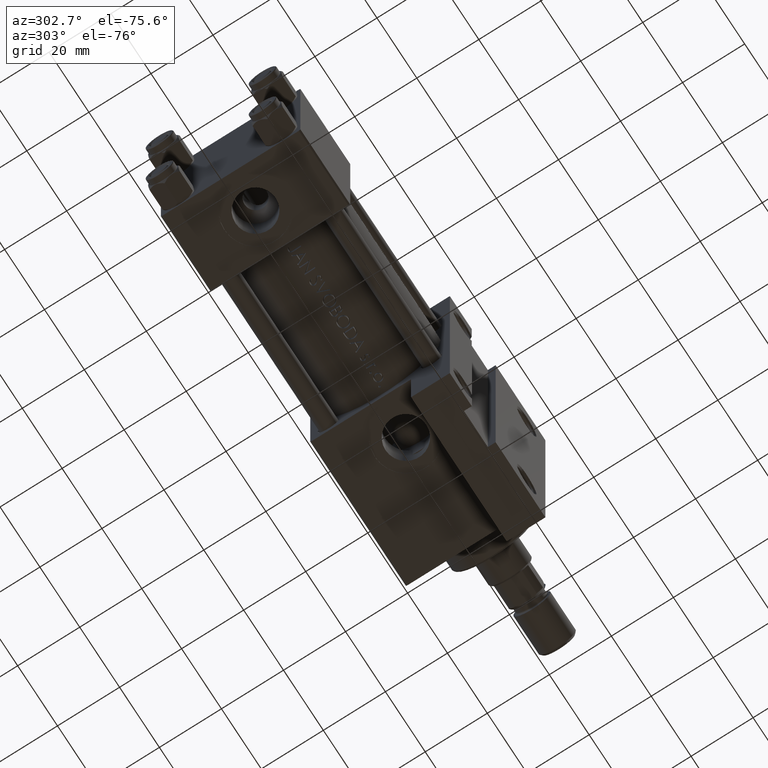
[diagram: clean part render]
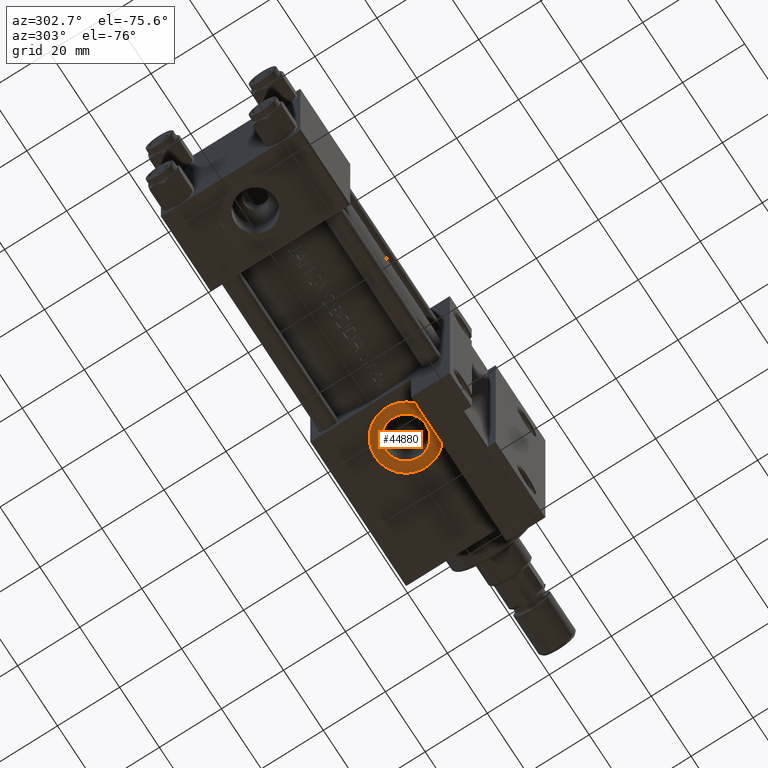
[diagram: same view with one face highlighted and labeled with its STEP entity id]
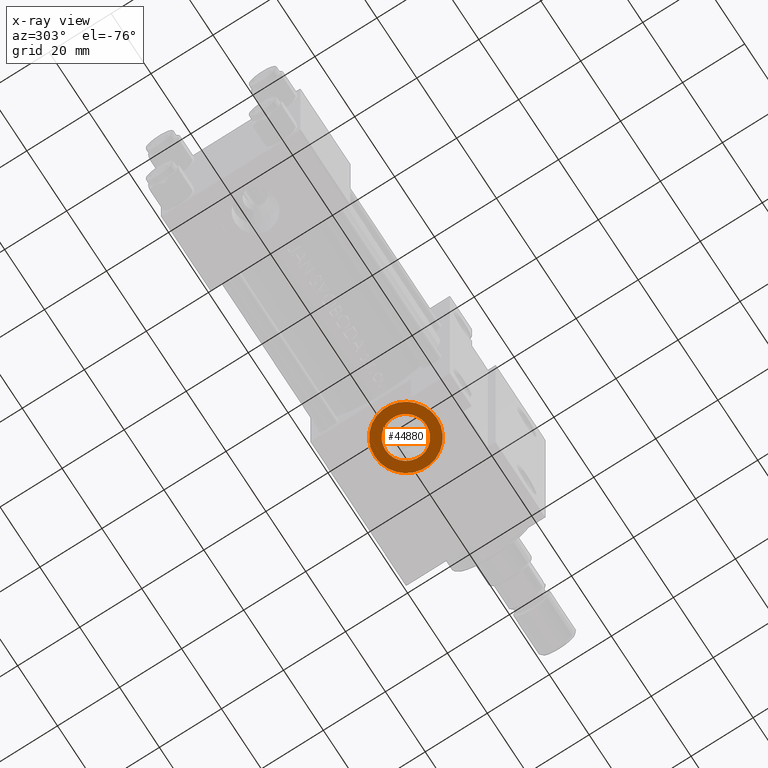
[diagram: x-ray of the same camera — body ghosted, the highlighted face saturated]
A machine part, auxiliary view. The second image highlights one B-rep face of the part: STEP entity #44880.
The next image is the same camera in x-ray: the body ghosted, the highlighted face saturated — about 0% of this face is hidden behind the body in this view.
In plain terms, the highlighted planar face has unit normal (0, 0, -1).
Its self-contained STEP definition (entity closure, byte-faithful):
#77 = CIRCLE ( 'NONE', #36653, 9.999999999999994671 ) ;
#1368 = CARTESIAN_POINT ( 'NONE',  ( 88.00000000000001421, 22.30000000000000426, 0.000000000000000000 ) ) ;
#1421 = CARTESIAN_POINT ( 'NONE',  ( 88.00000000000001421, 22.30000000000000426, 6.580000000000002736 ) ) ;
#2317 = AXIS2_PLACEMENT_3D ( 'NONE', #29065, #40512, #32976 ) ;
#3944 = DIRECTION ( 'NONE',  ( 0.000000000000000000, 1.000000000000000000, 0.000000000000000000 ) ) ;
#5263 = VERTEX_POINT ( 'NONE', #1421 ) ;
#6853 = VERTEX_POINT ( 'NONE', #30753 ) ;
#7471 = ORIENTED_EDGE ( 'NONE', *, *, #39522, .T. ) ;
#7475 = DIRECTION ( 'NONE',  ( 0.000000000000000000, 1.000000000000000000, 0.000000000000000000 ) ) ;
#10198 = AXIS2_PLACEMENT_3D ( 'NONE', #1368, #31816, #35469 ) ;
#11007 = DIRECTION ( 'NONE',  ( 0.000000000000000000, -0.000000000000000000, 1.000000000000000000 ) ) ;
#11502 = FACE_BOUND ( 'NONE', #18944, .T. ) ;
#11633 = EDGE_CURVE ( 'NONE', #31783, #6853, #33551, .T. ) ;
#12791 = EDGE_CURVE ( 'NONE', #5263, #27099, #30375, .T. ) ;
#13099 = CARTESIAN_POINT ( 'NONE',  ( 88.00000000000001421, 22.30000000000000426, 0.000000000000000000 ) ) ;
#13370 = AXIS2_PLACEMENT_3D ( 'NONE', #21727, #3944, #11007 ) ;
#16524 = DIRECTION ( 'NONE',  ( 0.000000000000000000, 1.000000000000000000, 0.000000000000000000 ) ) ;
#18337 = PLANE ( 'NONE',  #13370 ) ;
#18350 = ORIENTED_EDGE ( 'NONE', *, *, #12791, .F. ) ;
#18944 = EDGE_LOOP ( 'NONE', ( #18350, #31533 ) ) ;
#20509 = CARTESIAN_POINT ( 'NONE',  ( 88.00000000000001421, 22.30000000000000426, -6.580000000000002736 ) ) ;
#21727 = CARTESIAN_POINT ( 'NONE',  ( 88.00000000000001421, 22.30000000000000426, 0.000000000000000000 ) ) ;
#22312 = ORIENTED_EDGE ( 'NONE', *, *, #11633, .T. ) ;
#24237 = AXIS2_PLACEMENT_3D ( 'NONE', #44015, #7475, #29649 ) ;
#27099 = VERTEX_POINT ( 'NONE', #20509 ) ;
#27708 = DIRECTION ( 'NONE',  ( 0.000000000000000000, 0.000000000000000000, 1.000000000000000000 ) ) ;
#27761 = EDGE_LOOP ( 'NONE', ( #7471, #22312 ) ) ;
#29065 = CARTESIAN_POINT ( 'NONE',  ( 88.00000000000001421, 22.30000000000000426, 0.000000000000000000 ) ) ;
#29649 = DIRECTION ( 'NONE',  ( 0.000000000000000000, 0.000000000000000000, 1.000000000000000000 ) ) ;
#30375 = CIRCLE ( 'NONE', #2317, 6.580000000000002736 ) ;
#30753 = CARTESIAN_POINT ( 'NONE',  ( 88.00000000000001421, 22.30000000000000426, 9.999999999999994671 ) ) ;
#31533 = ORIENTED_EDGE ( 'NONE', *, *, #40390, .F. ) ;
#31783 = VERTEX_POINT ( 'NONE', #44740 ) ;
#31816 = DIRECTION ( 'NONE',  ( 0.000000000000000000, 1.000000000000000000, 0.000000000000000000 ) ) ;
#32976 = DIRECTION ( 'NONE',  ( 0.000000000000000000, 0.000000000000000000, 1.000000000000000000 ) ) ;
#33551 = CIRCLE ( 'NONE', #10198, 9.999999999999994671 ) ;
#35469 = DIRECTION ( 'NONE',  ( 0.000000000000000000, 0.000000000000000000, 1.000000000000000000 ) ) ;
#36588 = FACE_OUTER_BOUND ( 'NONE', #27761, .T. ) ;
#36653 = AXIS2_PLACEMENT_3D ( 'NONE', #13099, #16524, #27708 ) ;
#39522 = EDGE_CURVE ( 'NONE', #6853, #31783, #77, .T. ) ;
#40390 = EDGE_CURVE ( 'NONE', #27099, #5263, #43680, .T. ) ;
#40512 = DIRECTION ( 'NONE',  ( 0.000000000000000000, 1.000000000000000000, 0.000000000000000000 ) ) ;
#43680 = CIRCLE ( 'NONE', #24237, 6.580000000000002736 ) ;
#44015 = CARTESIAN_POINT ( 'NONE',  ( 88.00000000000001421, 22.30000000000000426, 0.000000000000000000 ) ) ;
#44740 = CARTESIAN_POINT ( 'NONE',  ( 88.00000000000001421, 22.30000000000000426, -9.999999999999994671 ) ) ;
#44880 = ADVANCED_FACE ( 'NONE', ( #11502, #36588 ), #18337, .T. ) ;